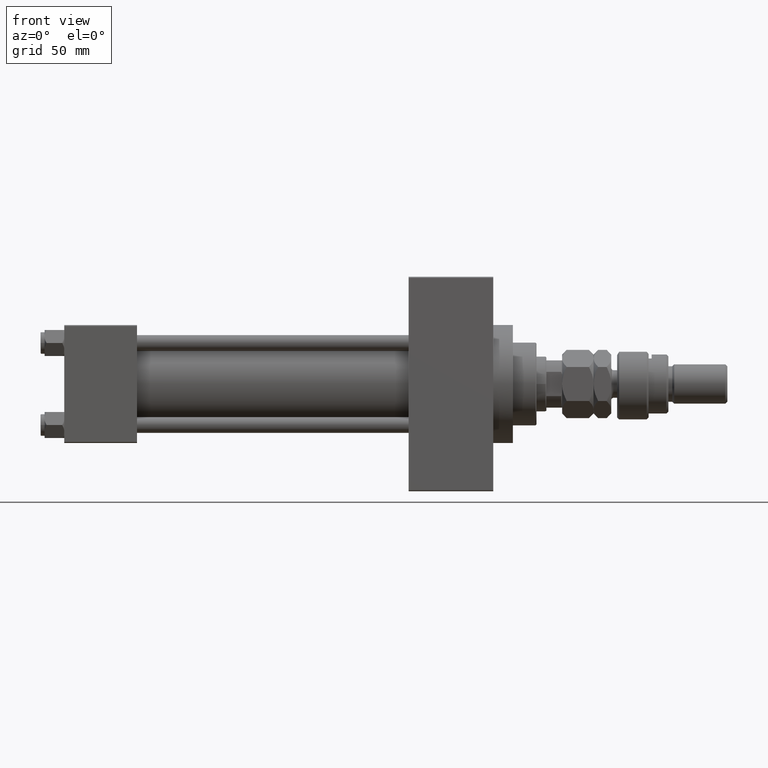
[diagram: clean part render]
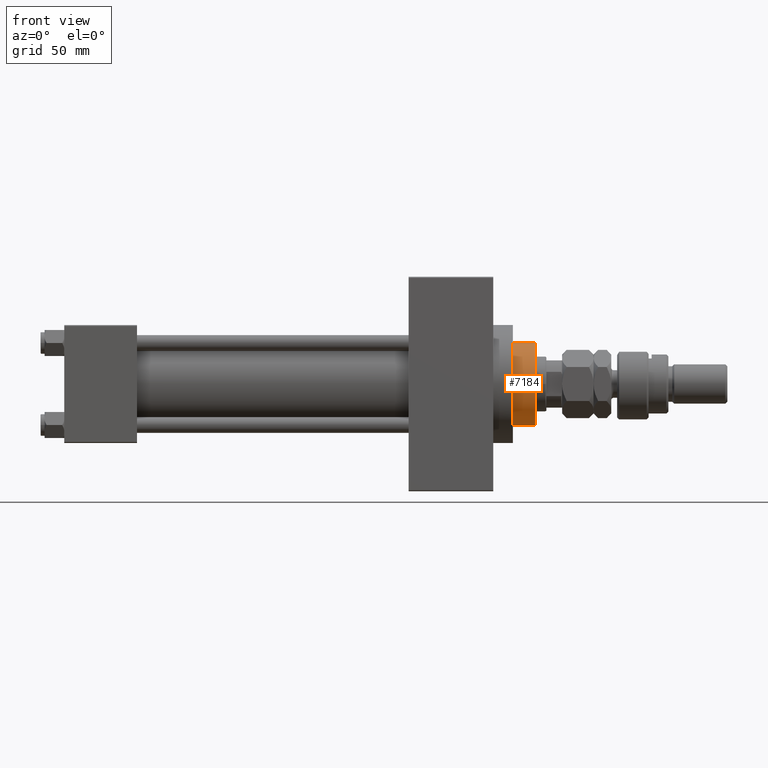
[diagram: same view with one face highlighted and labeled with its STEP entity id]
A machine part, front view. The second image highlights one B-rep face of the part: STEP entity #7184.
In plain terms, the highlighted cylindrical surface (partial cylindrical patch) has radius 21 mm, axis along (-1, 0, 0).
Its self-contained STEP definition (entity closure, byte-faithful):
#496 = ORIENTED_EDGE ( 'NONE', *, *, #50689, .T. ) ;
#872 = CIRCLE ( 'NONE', #44892, 21.00000000000000000 ) ;
#1639 = DIRECTION ( 'NONE',  ( -1.000000000000000000, 0.000000000000000000, 0.000000000000000000 ) ) ;
#2496 = DIRECTION ( 'NONE',  ( 0.000000000000000000, 0.000000000000000000, -1.000000000000000000 ) ) ;
#2986 = ORIENTED_EDGE ( 'NONE', *, *, #41750, .T. ) ;
#3933 = EDGE_CURVE ( 'NONE', #34815, #35215, #30589, .T. ) ;
#5758 = CARTESIAN_POINT ( 'NONE',  ( 0.000000000000000000, 0.000000000000000000, 43.25999999999999801 ) ) ;
#6724 = CARTESIAN_POINT ( 'NONE',  ( 0.000000000000000000, 0.000000000000000000, 54.75999999999999091 ) ) ;
#7184 = ADVANCED_FACE ( 'NONE', ( #9589 ), #25196, .T. ) ;
#7406 = EDGE_CURVE ( 'NONE', #11667, #22390, #23581, .T. ) ;
#7890 = EDGE_CURVE ( 'NONE', #35215, #22390, #8740, .T. ) ;
#8740 = CIRCLE ( 'NONE', #9597, 21.00000000000000000 ) ;
#8914 = CIRCLE ( 'NONE', #49539, 21.00000000000000000 ) ;
#9589 = FACE_OUTER_BOUND ( 'NONE', #22464, .T. ) ;
#9597 = AXIS2_PLACEMENT_3D ( 'NONE', #34824, #51011, #19171 ) ;
#9732 = DIRECTION ( 'NONE',  ( 1.000000000000000000, 0.000000000000000000, 0.000000000000000000 ) ) ;
#10107 = VECTOR ( 'NONE', #40711, 1000.000000000000000 ) ;
#11554 = LINE ( 'NONE', #43906, #10107 ) ;
#11667 = VERTEX_POINT ( 'NONE', #12738 ) ;
#12738 = CARTESIAN_POINT ( 'NONE',  ( -21.00000000000000000, 0.000000000000000000, 54.75999999999999091 ) ) ;
#12906 = DIRECTION ( 'NONE',  ( 0.000000000000000000, 0.000000000000000000, 1.000000000000000000 ) ) ;
#13069 = CARTESIAN_POINT ( 'NONE',  ( 0.000000000000000000, 0.000000000000000000, 43.25999999999999801 ) ) ;
#19171 = DIRECTION ( 'NONE',  ( 1.000000000000000000, 0.000000000000000000, 0.000000000000000000 ) ) ;
#19580 = AXIS2_PLACEMENT_3D ( 'NONE', #5758, #12906, #9732 ) ;
#21360 = VERTEX_POINT ( 'NONE', #47413 ) ;
#22390 = VERTEX_POINT ( 'NONE', #36796 ) ;
#22464 = EDGE_LOOP ( 'NONE', ( #2986, #496, #40619, #31608, #51653, #22516 ) ) ;
#22516 = ORIENTED_EDGE ( 'NONE', *, *, #7406, .F. ) ;
#23581 = LINE ( 'NONE', #24545, #40878 ) ;
#23665 = DIRECTION ( 'NONE',  ( 1.000000000000000000, 0.000000000000000000, 0.000000000000000000 ) ) ;
#24545 = CARTESIAN_POINT ( 'NONE',  ( -21.00000000000000000, 0.000000000000000000, 55.26000000000000512 ) ) ;
#25196 = CYLINDRICAL_SURFACE ( 'NONE', #45116, 21.00000000000000000 ) ;
#25785 = DIRECTION ( 'NONE',  ( 1.000000000000000000, 0.000000000000000000, 0.000000000000000000 ) ) ;
#29771 = DIRECTION ( 'NONE',  ( 0.000000000000000000, 0.000000000000000000, 1.000000000000000000 ) ) ;
#30589 = CIRCLE ( 'NONE', #19580, 21.00000000000000000 ) ;
#31608 = ORIENTED_EDGE ( 'NONE', *, *, #3933, .T. ) ;
#33984 = VERTEX_POINT ( 'NONE', #46926 ) ;
#34815 = VERTEX_POINT ( 'NONE', #46684 ) ;
#34824 = CARTESIAN_POINT ( 'NONE',  ( 0.000000000000000000, 0.000000000000000000, 43.25999999999999801 ) ) ;
#35215 = VERTEX_POINT ( 'NONE', #51361 ) ;
#36796 = CARTESIAN_POINT ( 'NONE',  ( -21.00000000000000000, 0.000000000000000000, 43.25999999999999801 ) ) ;
#37033 = DIRECTION ( 'NONE',  ( -0.000000000000000000, -0.000000000000000000, -1.000000000000000000 ) ) ;
#38265 = EDGE_CURVE ( 'NONE', #21360, #34815, #872, .T. ) ;
#40619 = ORIENTED_EDGE ( 'NONE', *, *, #38265, .T. ) ;
#40711 = DIRECTION ( 'NONE',  ( -0.000000000000000000, -0.000000000000000000, -1.000000000000000000 ) ) ;
#40878 = VECTOR ( 'NONE', #37033, 1000.000000000000000 ) ;
#41405 = CARTESIAN_POINT ( 'NONE',  ( 0.000000000000000000, 0.000000000000000000, 55.26000000000000512 ) ) ;
#41750 = EDGE_CURVE ( 'NONE', #11667, #33984, #8914, .T. ) ;
#43906 = CARTESIAN_POINT ( 'NONE',  ( 21.00000000000000000, 2.571758278209441661E-15, 55.26000000000000512 ) ) ;
#44892 = AXIS2_PLACEMENT_3D ( 'NONE', #13069, #29771, #25785 ) ;
#45116 = AXIS2_PLACEMENT_3D ( 'NONE', #41405, #45640, #1639 ) ;
#45640 = DIRECTION ( 'NONE',  ( -0.000000000000000000, -0.000000000000000000, -1.000000000000000000 ) ) ;
#46684 = CARTESIAN_POINT ( 'NONE',  ( 20.96385542168674831, 1.231570484631382412, 43.25999999999999801 ) ) ;
#46926 = CARTESIAN_POINT ( 'NONE',  ( 21.00000000000000000, 2.571758278209441661E-15, 54.75999999999999091 ) ) ;
#47413 = CARTESIAN_POINT ( 'NONE',  ( 21.00000000000000000, 2.571758278209441661E-15, 43.25999999999999801 ) ) ;
#49539 = AXIS2_PLACEMENT_3D ( 'NONE', #6724, #2496, #23665 ) ;
#50689 = EDGE_CURVE ( 'NONE', #33984, #21360, #11554, .T. ) ;
#51011 = DIRECTION ( 'NONE',  ( 0.000000000000000000, 0.000000000000000000, 1.000000000000000000 ) ) ;
#51361 = CARTESIAN_POINT ( 'NONE',  ( -20.96385542168674831, 1.231570484631382856, 43.25999999999999801 ) ) ;
#51653 = ORIENTED_EDGE ( 'NONE', *, *, #7890, .T. ) ;